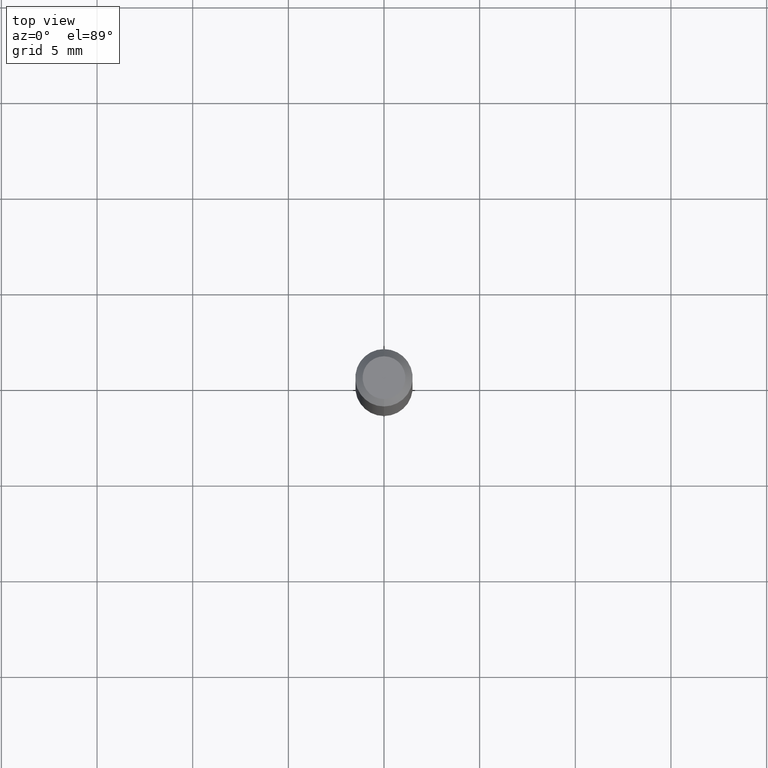
[diagram: clean part render]
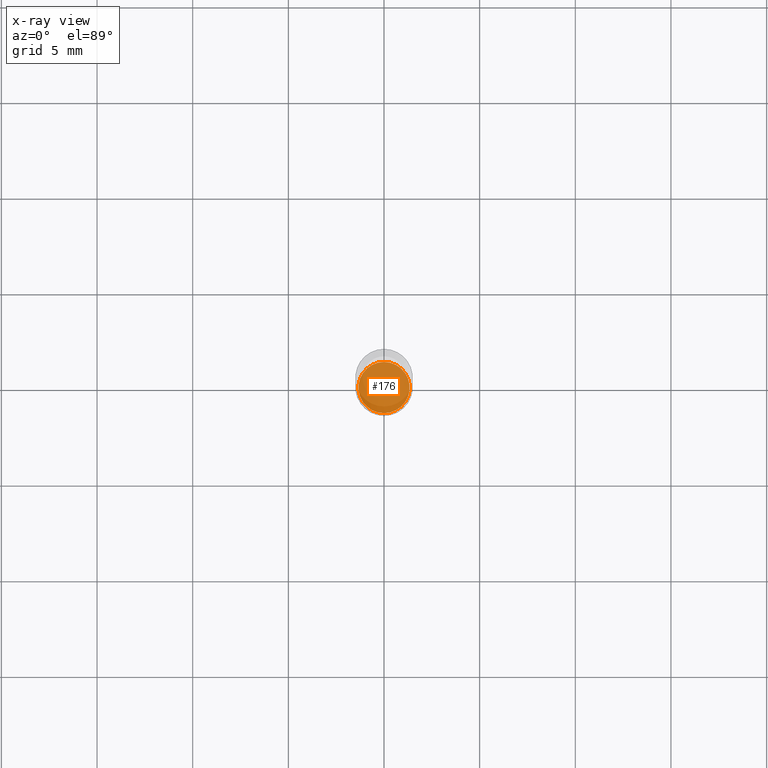
[diagram: x-ray — body ghosted, one internal face saturated and labeled with its STEP entity id]
A machine part, top view, then the same camera in x-ray: the body is ghosted and one INTERNAL B-rep face — a face not visible from any outside direction — is saturated and labeled: STEP entity #176.
In plain terms, the highlighted planar face has unit normal (-0, 0, 1).
Its self-contained STEP definition (entity closure, byte-faithful):
#9 = DIRECTION ( 'NONE',  ( -2.445529558203233755E-29, 3.491394338495440431E-15, 1.000000000000000000 ) ) ;
#10 = VERTEX_POINT ( 'NONE', #155 ) ;
#44 = ORIENTED_EDGE ( 'NONE', *, *, #181, .F. ) ;
#45 = CIRCLE ( 'NONE', #55, 0.05265000000000000235 ) ;
#55 = AXIS2_PLACEMENT_3D ( 'NONE', #204, #9, #130 ) ;
#93 = DIRECTION ( 'NONE',  ( -2.445529558203233755E-29, 3.491394338495440431E-15, 1.000000000000000000 ) ) ;
#113 = DIRECTION ( 'NONE',  ( -6.982962677686265922E-15, -1.000000000000000000, 3.491394338495440431E-15 ) ) ;
#130 = DIRECTION ( 'NONE',  ( -6.982962677686265922E-15, -1.000000000000000000, 2.594347572330734199E-15 ) ) ;
#133 = AXIS2_PLACEMENT_3D ( 'NONE', #312, #472, #113 ) ;
#146 = ORIENTED_EDGE ( 'NONE', *, *, #236, .F. ) ;
#155 = CARTESIAN_POINT ( 'NONE',  ( 3.758771072171219580E-16, 0.05264999999999589453, -1.177200000000000024 ) ) ;
#176 = ADVANCED_FACE ( 'NONE', ( #399 ), #180, .F. ) ;
#180 = PLANE ( 'NONE',  #133 ) ;
#181 = EDGE_CURVE ( 'NONE', #225, #10, #390, .T. ) ;
#204 = CARTESIAN_POINT ( 'NONE',  ( 2.878877395916846125E-29, -4.110069415276832052E-15, -1.177200000000000024 ) ) ;
#225 = VERTEX_POINT ( 'NONE', #278 ) ;
#236 = EDGE_CURVE ( 'NONE', #10, #225, #45, .T. ) ;
#278 = CARTESIAN_POINT ( 'NONE',  ( -3.676529849801530716E-16, -0.05265000000000411018, -1.177199999999999802 ) ) ;
#312 = CARTESIAN_POINT ( 'NONE',  ( 2.878877395916846125E-29, -4.110069415276832052E-15, -1.177200000000000024 ) ) ;
#390 = CIRCLE ( 'NONE', #475, 0.05265000000000000235 ) ;
#399 = FACE_OUTER_BOUND ( 'NONE', #490, .T. ) ;
#406 = DIRECTION ( 'NONE',  ( -6.982962677686265922E-15, -1.000000000000000000, 2.594347572330734199E-15 ) ) ;
#451 = CARTESIAN_POINT ( 'NONE',  ( 2.878877395916846125E-29, -4.110069415276832052E-15, -1.177200000000000024 ) ) ;
#472 = DIRECTION ( 'NONE',  ( -2.445529558203233475E-29, 3.491394338495440431E-15, 1.000000000000000000 ) ) ;
#475 = AXIS2_PLACEMENT_3D ( 'NONE', #451, #93, #406 ) ;
#490 = EDGE_LOOP ( 'NONE', ( #44, #146 ) ) ;